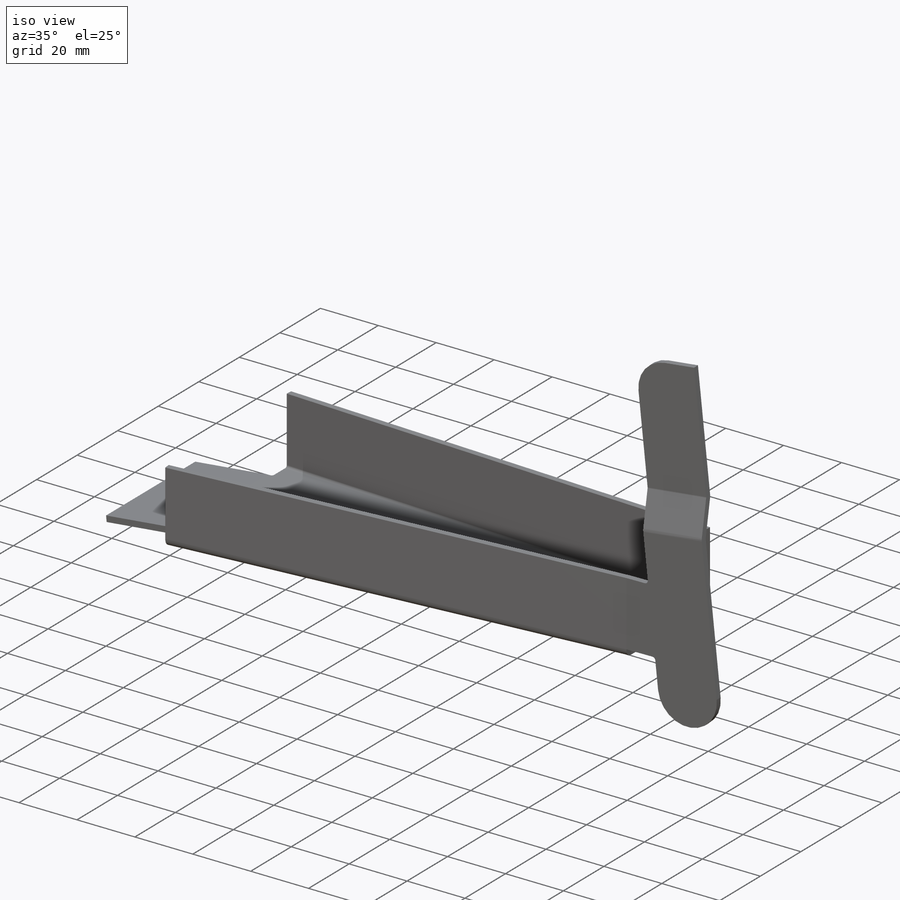
[diagram: iso view]
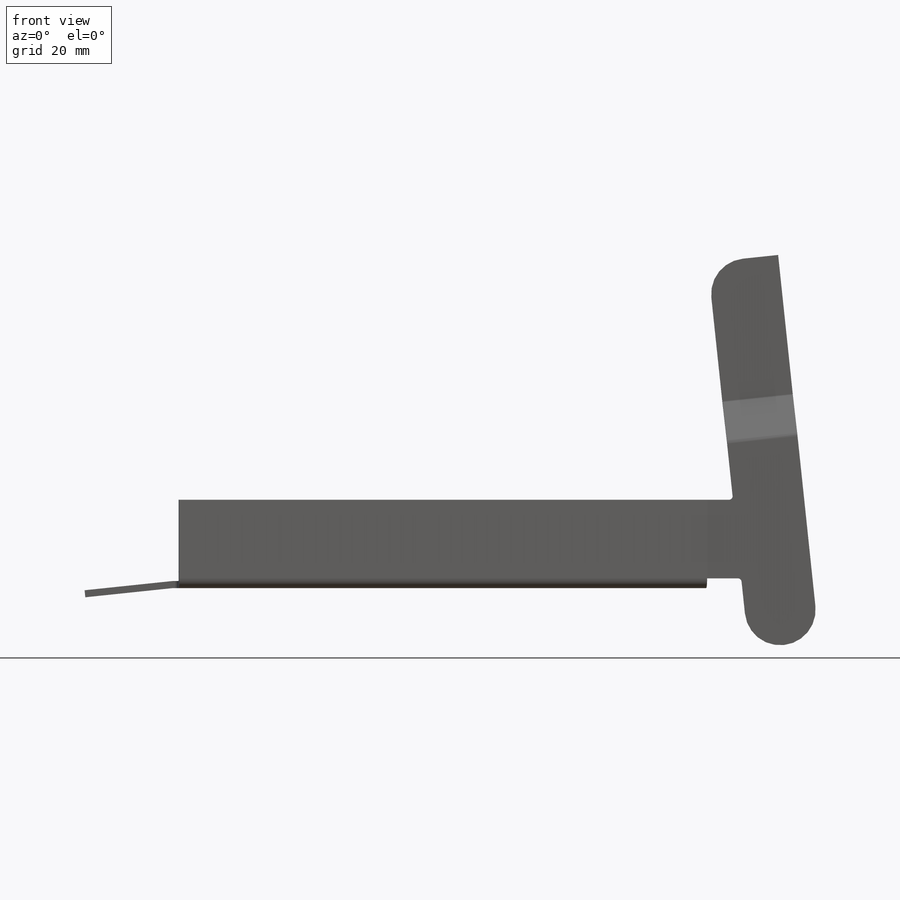
[diagram: front view]
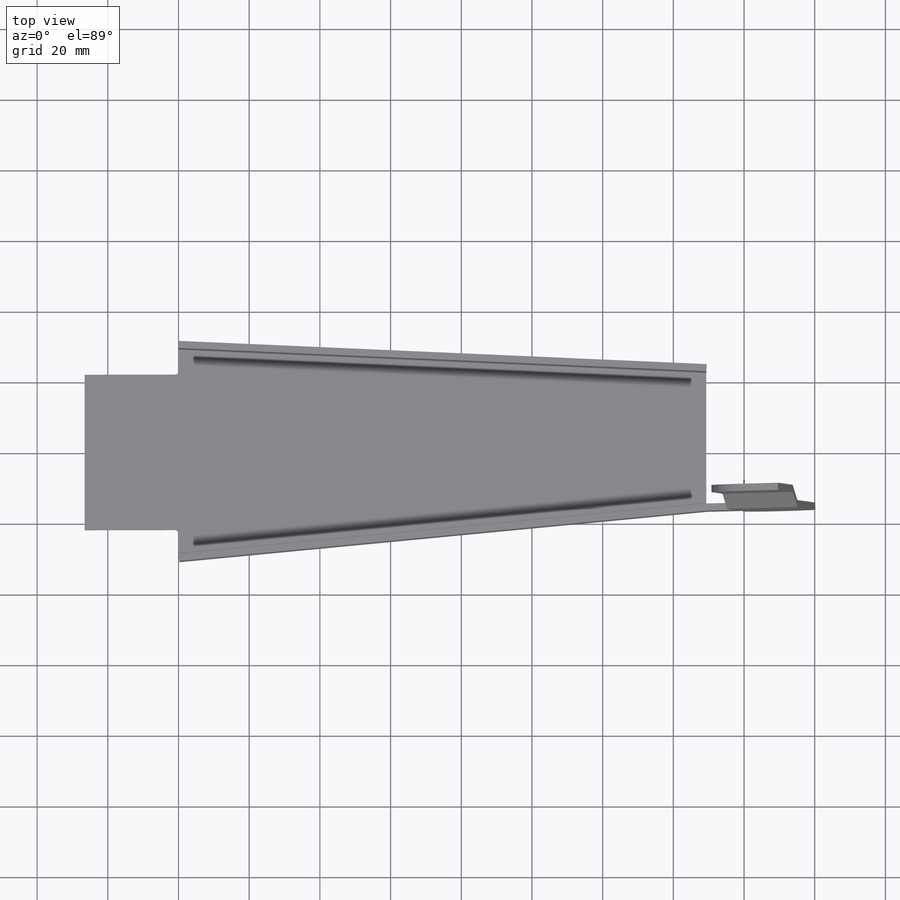
[diagram: top view]
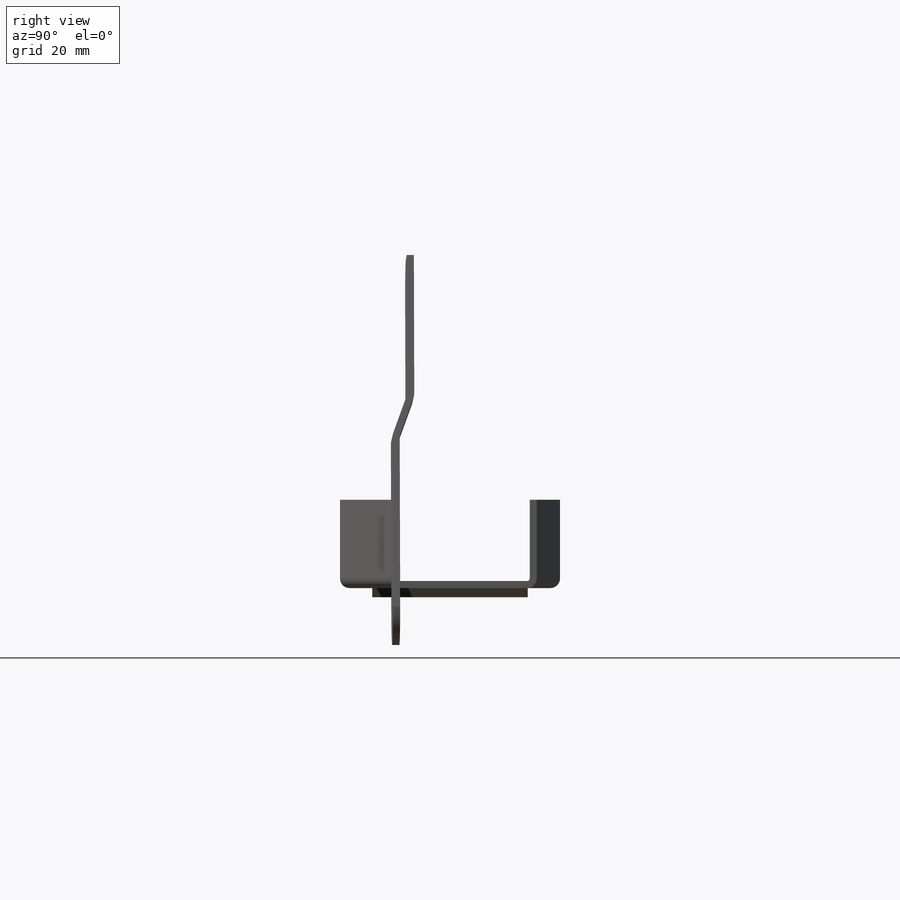
[diagram: right view]
SOLIDWORKS PART (.sldprt)
format: sldprt  version: not decoded by parser v0  size: 560,640 bytes
history: native  units: mm
features: sketch x29, sheet_metal_op x15, extrude x6, plane x3, fillet x3, material x1 + 33 further entries (+10 scaffold rows collapsed; 1 parser-record rows omitted)
feature tree (101):
  scaffold x10  (default folders/planes/origin — collapsed)
  material  "Material <nicht angegeben>"
  plane  "Vorne"
  plane  "Oben"
  plane  "Rechts"
  sketch  "Skizze1"  dims[c1.D1=~22.212385mm c2.D1=56.81mm c2.D2=~51.645455mm c3.D2=35.98mm c3.D3=56.81mm c4.D3=~198.600248mm c5.D3=149.3mm c5.D1=0.7366mm c5.D2=0.5 c6.D3=0.0mm c6.D6=500.0mm]
  sheet_metal_op  "Basis-Blech1"
  sketch  "Skizze6"  dims[c1.D1=~43.599289mm c2.D1=44.0mm]
  extrude  "Aufsatz-Linear austragen1"  Depth=1.5mm
  sketch  "Skizze9"  dims[c1.D1=2.0mm c1.D4=6.0deg c1.D5=1.0 c1.D8=1.0mm c1.D9=1.0mm c2.D1=2.0mm c2.D2=500.0mm c2.D3=0.0mm c2.D6=10.0mm c2.D7=25.0mm]
  sheet_metal_op  "Kante-Lasche2"
  sketch  "Skizze12"
  extrude  "Kantenbiegung2"  Depth=0.7366mm
  sheet_metal_op  "Kante-Lasche3"
  sketch  "Skizze15"
  extrude  "Kantenbiegung3"  Depth=0.7366mm
  sheet_metal_op  "Kante-Lasche4"
  sketch  "Skizze18"  dims[c1.D1=~6.930158mm c2.D1=96.0deg c2.D2=~6.930158mm c3.D2=7.35mm]
  extrude  "Kantenbiegung4"  Depth=0.7366mm
  sketch  "Skizze19"  dims[c1.D1=~1.999993mm c2.D1=~0.152094deg c3.D1=~1.999993mm c4.D1=~2.836001mm c5.D1=16.0mm c5.D2=~1.999993mm c6.D2=~3.737954mm c7.D2=20.0mm c7.Aufsatz-Linear austragen2=0.0 c7.D1=20.0mm]
  sheet_metal_op  "Kante-Lasche5"
  sketch  "Skizze22"
  extrude  "Kantenbiegung5"  Depth=0.7366mm
  sheet_metal_op  "Kante-Lasche6"
  sketch  "Skizze25"
  extrude  "Kantenbiegung6"  Depth=0.7366mm
  fillet  "Verrundung1"  Radius=1mm
  fillet  "Verrundung2"  Radius=10mm
  fillet  "Verrundung3"  [1 undecoded]
  sketch  "Biegung-Linien1"
  sketch  "Rahmen1"
  sheet_metal_op  "Blech1"
  "Abwicklung1"
  sketch  "Biegung-Linien2"
  sketch  "Rahmen2"
  parser-record x1  (decoder bookkeeping rows leaked as tree rows — omitted from the tree; the rows remain in map.json)
  sheet_metal_op  "Blech2"
  "Abwicklung1"
  sketch  "Biegung-Linien2"
  sketch  "Rahmen2"
  sheet_metal_op  "Blech3"
  "Abwicklung1"
  sketch  "Biegung-Linien2"
  sketch  "Rahmen2"
  sheet_metal_op  "Blech4"
  "Abwicklung1"
  sketch  "Biegung-Linien2"
  sketch  "Rahmen2"
  "Abwickeln-<Kantenbiegung1>1"
  "Abwickeln-<Kantenbiegung2>1"
  sheet_metal_op  "Blech5"
  "Abwicklung1"
  sketch  "Biegung-Linien2"
  sketch  "Rahmen2"
  "Abwickeln-<Kantenbiegung1>1"
  "Abwickeln-<Kantenbiegung2>1"
  "Abwickeln-<Kantenbiegung3>1"
  sheet_metal_op  "Blech6"
  "Abwicklung1"
  sketch  "Biegung-Linien2"
  sketch  "Rahmen2"
  "Abwickeln-<Kantenbiegung1>1"
  "Abwickeln-<Kantenbiegung2>1"
  "Abwickeln-<Kantenbiegung3>1"
  "Abwickeln-<Kantenbiegung4>1"
  sheet_metal_op  "Blech7"
  "Abwicklung1"
  sketch  "Biegung-Linien2"
  sketch  "Rahmen2"
  "Abwickeln-<Kantenbiegung1>1"
  "Abwickeln-<Kantenbiegung2>1"
  "Abwickeln-<Kantenbiegung3>1"
  "Abwickeln-<Kantenbiegung4>1"
  sheet_metal_op  "Blech8"
  "Abwicklung1"
  sketch  "Biegung-Linien2"
  sketch  "Rahmen2"
  "Abwickeln-<Kantenbiegung1>1"
  "Abwickeln-<Kantenbiegung2>1"
  "Abwickeln-<Kantenbiegung3>1"
  "Abwickeln-<Kantenbiegung4>1"
  "Abwickeln-<Kantenbiegung5>1"
  sheet_metal_op  "Blech9"
  "Abwicklung1"
  sketch  "Biegung-Linien2"
  sketch  "Rahmen2"
  "Abwickeln-<Kantenbiegung1>1"
  "Abwickeln-<Kantenbiegung2>1"
  "Abwickeln-<Kantenbiegung3>1"
  "Abwickeln-<Kantenbiegung4>1"
  "Abwickeln-<Kantenbiegung5>1"
  "Abwickeln-<Kantenbiegung6>1"
decode coverage: 13 of 53 modeling features carry decoded parameters; 33 rows unclassified (native names shown)
note: ~ marks probable driven/reference dimensions
note: 1 parameter value undecoded
note: suppression state not decoded; provenance and decode notes live in map.json
